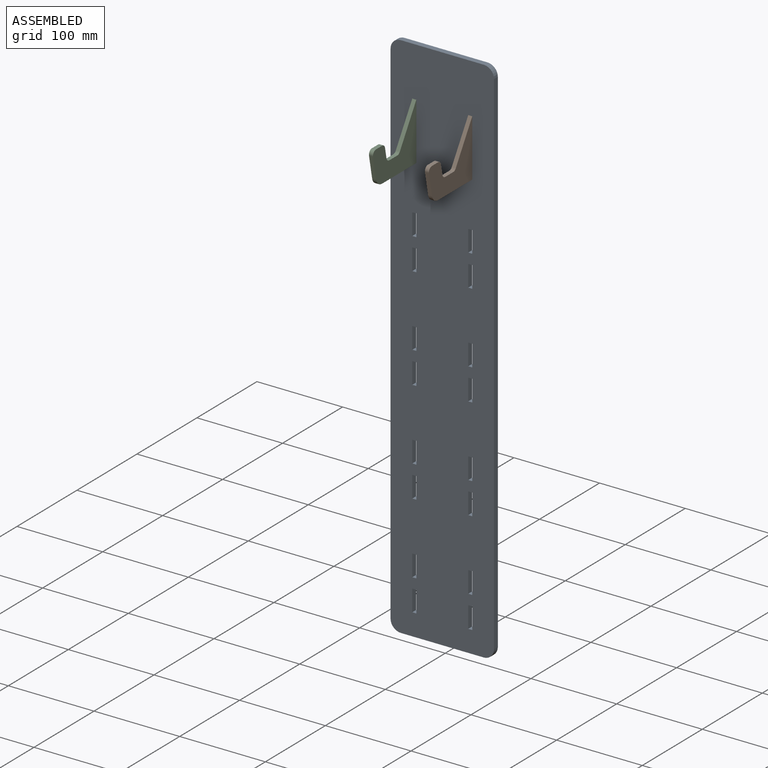
[diagram: assembled view]
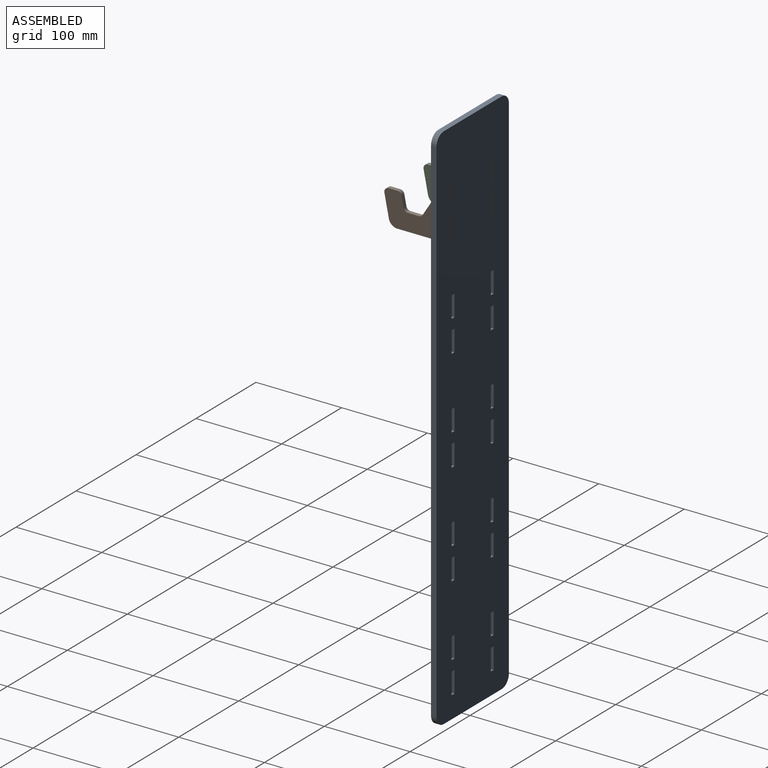
[diagram: assembled view, second angle]
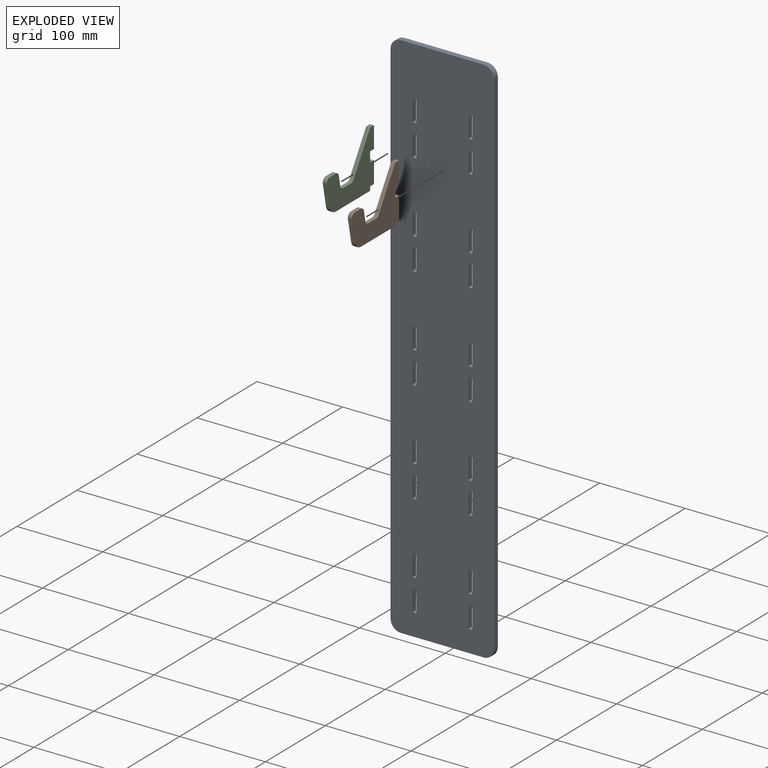
[diagram: exploded view]
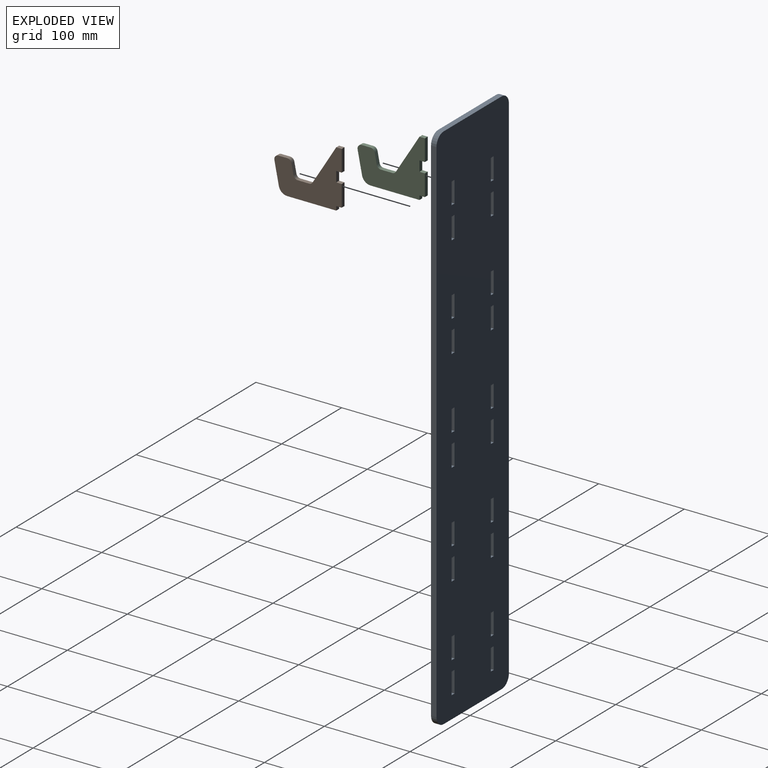
[diagram: exploded view, second angle]
ASSEMBLY  parts=3 mates=2
PART A: 90 faces, bbox 120.8x6.4x625.4 mm
  f0: plane 6.35x4.7mm, normal (0,0,-1), area 29.8mm2, adj f1,f87,f88,f89
  f1: plane 25x6.35mm, normal (-1,0,0), area 158.7mm2, adj f0,f2,f88,f89
  f2: plane 6.35x4.7mm, normal (0,0,1), area 29.8mm2, adj f1,f87,f88,f89
  f3: plane 6.35x4.7mm, normal (0,0,-1), area 29.8mm2, adj f4,f67,f88,f89
  f4: plane 25x6.35mm, normal (-1,0,0), area 158.8mm2, adj f3,f5,f88,f89
  f5: plane 6.35x4.7mm, normal (0,0,1), area 29.8mm2, adj f4,f67,f88,f89
  f6: plane 6.35x4.7mm, normal (0,0,-1), area 29.8mm2, adj f7,f68,f88,f89
  f7: plane 25x6.35mm, normal (-1,0,0), area 158.7mm2, adj f6,f8,f88,f89
  f8: plane 6.35x4.7mm, normal (0,0,1), area 29.8mm2, adj f7,f68,f88,f89
  f9: plane 6.35x4.7mm, normal (0,0,-1), area 29.8mm2, adj f10,f69,f88,f89
  f10: plane 25x6.35mm, normal (-1,0,0), area 158.8mm2, adj f9,f11,f88,f89
  f11: plane 6.35x4.7mm, normal (0,0,1), area 29.8mm2, adj f10,f69,f88,f89
  f12: plane 601.4x6.35mm, normal (1,0,0), area 3818.9mm2, adj f13,f70,f88,f89
  f13: cylinder r=12mm len=12mm, axis (0,1,0), area 119.7mm2, adj f12,f14,f88,f89
  f14: plane 96.8x6.35mm, normal (0,0,1), area 614.7mm2, adj f13,f15,f88,f89
  f15: cylinder r=12mm len=12mm, axis (0,1,0), area 119.7mm2, adj f14,f16,f88,f89
  f16: plane 601.4x6.35mm, normal (-1,0,0), area 3818.9mm2, adj f15,f17,f88,f89
  f17: cylinder r=12mm len=12mm, axis (0,1,0), area 119.7mm2, adj f16,f18,f88,f89
  f18: plane 96.8x6.35mm, normal (0,0,-1), area 614.7mm2, adj f17,f70,f88,f89
  f19: plane 6.35x4.7mm, normal (0,0,1), area 29.8mm2, adj f20,f71,f88,f89
  f20: plane 25x6.35mm, normal (1,0,0), area 158.8mm2, adj f19,f21,f88,f89
  f21: plane 6.35x4.7mm, normal (0,0,-1), area 29.8mm2, adj f20,f71,f88,f89
  f22: plane 6.35x4.7mm, normal (0,0,1), area 29.8mm2, adj f23,f72,f88,f89
  f23: plane 25x6.35mm, normal (1,0,0), area 158.8mm2, adj f22,f24,f88,f89
  f24: plane 6.35x4.7mm, normal (0,0,-1), area 29.8mm2, adj f23,f72,f88,f89
  f25: plane 25x6.35mm, normal (1,0,0), area 158.8mm2, adj f26,f73,f88,f89
  f26: plane 6.35x4.7mm, normal (0,0,-1), area 29.8mm2, adj f25,f27,f88,f89
  f27: plane 25x6.35mm, normal (-1,0,0), area 158.8mm2, adj f26,f73,f88,f89
  f28: plane 6.35x4.7mm, normal (0,0,1), area 29.8mm2, adj f29,f74,f88,f89
  f29: plane 25x6.35mm, normal (1,0,0), area 158.7mm2, adj f28,f30,f88,f89
  f30: plane 6.35x4.7mm, normal (0,0,-1), area 29.8mm2, adj f29,f74,f88,f89
  f31: plane 6.35x4.7mm, normal (0,0,1), area 29.8mm2, adj f32,f75,f88,f89
  f32: plane 25x6.35mm, normal (1,0,0), area 158.7mm2, adj f31,f33,f88,f89
  f33: plane 6.35x4.7mm, normal (0,0,-1), area 29.8mm2, adj f32,f75,f88,f89
  f34: plane 25x6.35mm, normal (1,0,0), area 158.7mm2, adj f35,f76,f88,f89
  f35: plane 6.35x4.7mm, normal (0,0,-1), area 29.8mm2, adj f34,f36,f88,f89
  f36: plane 25x6.35mm, normal (-1,0,0), area 158.7mm2, adj f35,f76,f88,f89
  f37: plane 6.35x4.7mm, normal (0,0,1), area 29.8mm2, adj f38,f77,f88,f89
  f38: plane 25x6.35mm, normal (1,0,0), area 158.8mm2, adj f37,f39,f88,f89
  f39: plane 6.35x4.7mm, normal (0,0,-1), area 29.8mm2, adj f38,f77,f88,f89
  f40: plane 6.35x4.7mm, normal (0,0,1), area 29.8mm2, adj f41,f78,f88,f89
  f41: plane 25x6.35mm, normal (1,0,0), area 158.8mm2, adj f40,f42,f88,f89
  f42: plane 6.35x4.7mm, normal (0,0,-1), area 29.8mm2, adj f41,f78,f88,f89
  f43: plane 25x6.35mm, normal (1,0,0), area 158.8mm2, adj f44,f79,f88,f89
  f44: plane 6.35x4.7mm, normal (0,0,-1), area 29.8mm2, adj f43,f45,f88,f89
  f45: plane 25x6.35mm, normal (-1,0,0), area 158.8mm2, adj f44,f79,f88,f89
  f46: plane 6.35x4.7mm, normal (0,0,1), area 29.8mm2, adj f47,f80,f88,f89
  f47: plane 25x6.35mm, normal (1,0,0), area 158.7mm2, adj f46,f48,f88,f89
  f48: plane 6.35x4.7mm, normal (0,0,-1), area 29.8mm2, adj f47,f80,f88,f89
  f49: plane 6.35x4.7mm, normal (0,0,1), area 29.8mm2, adj f50,f81,f88,f89
  f50: plane 25x6.35mm, normal (1,0,0), area 158.7mm2, adj f49,f51,f88,f89
  f51: plane 6.35x4.7mm, normal (0,0,-1), area 29.8mm2, adj f50,f81,f88,f89
  f52: plane 25x6.35mm, normal (1,0,0), area 158.7mm2, adj f53,f82,f88,f89
  f53: plane 6.35x4.7mm, normal (0,0,-1), area 29.8mm2, adj f52,f54,f88,f89
  f54: plane 25x6.35mm, normal (-1,0,0), area 158.7mm2, adj f53,f82,f88,f89
  f55: plane 25x6.35mm, normal (1,0,0), area 158.7mm2, adj f56,f83,f88,f89
  f56: plane 6.35x4.7mm, normal (0,0,-1), area 29.8mm2, adj f55,f57,f88,f89
  f57: plane 25x6.35mm, normal (-1,0,0), area 158.7mm2, adj f56,f83,f88,f89
  f58: plane 25x6.35mm, normal (1,0,0), area 158.7mm2, adj f59,f84,f88,f89
  f59: plane 6.35x4.7mm, normal (0,0,-1), area 29.8mm2, adj f58,f60,f88,f89
  f60: plane 25x6.35mm, normal (-1,0,0), area 158.7mm2, adj f59,f84,f88,f89
  f61: plane 25x6.35mm, normal (1,0,0), area 158.7mm2, adj f62,f85,f88,f89
  f62: plane 6.35x4.7mm, normal (0,0,-1), area 29.8mm2, adj f61,f63,f88,f89
  f63: plane 25x6.35mm, normal (-1,0,0), area 158.7mm2, adj f62,f85,f88,f89
  f64: plane 25x6.35mm, normal (1,0,0), area 158.7mm2, adj f65,f86,f88,f89
  f65: plane 6.35x4.7mm, normal (0,0,-1), area 29.8mm2, adj f64,f66,f88,f89
  f66: plane 25x6.35mm, normal (-1,0,0), area 158.7mm2, adj f65,f86,f88,f89
  f67: plane 25x6.35mm, normal (1,0,0), area 158.8mm2, adj f3,f5,f88,f89
  f68: plane 25x6.35mm, normal (1,0,0), area 158.7mm2, adj f6,f8,f88,f89
  f69: plane 25x6.35mm, normal (1,0,0), area 158.8mm2, adj f9,f11,f88,f89
  f70: cylinder r=12mm len=12mm, axis (0,1,0), area 119.7mm2, adj f12,f18,f88,f89
  f71: plane 25x6.35mm, normal (-1,0,0), area 158.8mm2, adj f19,f21,f88,f89
  f72: plane 25x6.35mm, normal (-1,0,0), area 158.8mm2, adj f22,f24,f88,f89
  f73: plane 6.35x4.7mm, normal (0,0,1), area 29.8mm2, adj f25,f27,f88,f89
  f74: plane 25x6.35mm, normal (-1,0,0), area 158.7mm2, adj f28,f30,f88,f89
  f75: plane 25x6.35mm, normal (-1,0,0), area 158.7mm2, adj f31,f33,f88,f89
  f76: plane 6.35x4.7mm, normal (0,0,1), area 29.8mm2, adj f34,f36,f88,f89
  f77: plane 25x6.35mm, normal (-1,0,0), area 158.8mm2, adj f37,f39,f88,f89
  f78: plane 25x6.35mm, normal (-1,0,0), area 158.8mm2, adj f40,f42,f88,f89
  f79: plane 6.35x4.7mm, normal (0,0,1), area 29.8mm2, adj f43,f45,f88,f89
  f80: plane 25x6.35mm, normal (-1,0,0), area 158.7mm2, adj f46,f48,f88,f89
  f81: plane 25x6.35mm, normal (-1,0,0), area 158.7mm2, adj f49,f51,f88,f89
  f82: plane 6.35x4.7mm, normal (0,0,1), area 29.8mm2, adj f52,f54,f88,f89
  f83: plane 6.35x4.7mm, normal (0,0,1), area 29.8mm2, adj f55,f57,f88,f89
  f84: plane 6.35x4.7mm, normal (0,0,1), area 29.8mm2, adj f58,f60,f88,f89
  f85: plane 6.35x4.7mm, normal (0,0,1), area 29.8mm2, adj f61,f63,f88,f89
  f86: plane 6.35x4.7mm, normal (0,0,1), area 29.8mm2, adj f64,f66,f88,f89
  f87: plane 25x6.35mm, normal (1,0,0), area 158.7mm2, adj f0,f2,f88,f89
  f88: plane 625.4x120.8mm, normal (0,-1,0), area 73074.7mm2, adj f0,f1,f2,f3,f4,f5,f6,f7
  f89: plane 625.4x120.8mm, normal (0,1,0), area 73074.7mm2, adj f0,f1,f2,f3,f4,f5,f6,f7
PART B: 21 faces, bbox 4.7x78.6x66.7 mm
  f0: cylinder r=5mm len=4.7mm, axis (-1,0,0), area 23.9mm2, adj f1,f18,f19,f20
  f1: plane 13.12x4.7mm, normal (0,0,1), area 61.7mm2, adj f0,f2,f19,f20
  f2: cylinder r=5mm len=4.9mm, axis (-1,0,0), area 32.3mm2, adj f1,f3,f19,f20
  f3: plane 11.96x4.7mm, normal (0,0.98,0.2), area 57.3mm2, adj f2,f4,f19,f20
  f4: cylinder r=5mm len=4.9mm, axis (-1,0,0), area 32.3mm2, adj f3,f5,f19,f20
  f5: plane 10.2x4.7mm, normal (0,0,1), area 47.9mm2, adj f4,f6,f19,f20
  f6: cylinder r=5mm len=5.98mm, axis (-1,0,0), area 41.6mm2, adj f5,f7,f19,f20
  f7: plane 25.98x5.2mm, normal (0,-0.98,-0.2), area 124.5mm2, adj f6,f8,f19,f20
  f8: cylinder r=10mm len=9.81mm, axis (-1,0,0), area 64.5mm2, adj f7,f9,f19,f20
  f9: plane 57.19x4.7mm, normal (0,0,-1), area 268.8mm2, adj f8,f10,f19,f20
  f10: plane 4.74x4.7mm, normal (0,1,0), area 22.3mm2, adj f9,f11,f19,f20
  f11: plane 6.35x4.7mm, normal (0,0,-1), area 29.8mm2, adj f10,f12,f19,f20
  f12: plane 25x4.7mm, normal (0,1,0), area 117.5mm2, adj f11,f13,f19,f20
  f13: plane 6.35x4.7mm, normal (0,0,1), area 29.8mm2, adj f12,f14,f19,f20
  f14: plane 12x4.7mm, normal (0,1,0), area 56.4mm2, adj f13,f15,f19,f20
  f15: plane 6.35x4.7mm, normal (0,0,-1), area 29.8mm2, adj f14,f16,f19,f20
  f16: plane 25x4.7mm, normal (0,1,0), area 117.5mm2, adj f15,f17,f19,f20
  f17: plane 6.35x4.7mm, normal (0,0,1), area 29.8mm2, adj f16,f18,f19,f20
  f18: plane 44.37x27.53mm, normal (0,-0.85,0.53), area 245.4mm2, adj f0,f17,f19,f20
  f19: plane 78.64x66.74mm, normal (1,0,0), area 2730.4mm2, adj f0,f1,f2,f3,f4,f5,f6,f7
  f20: plane 78.64x66.74mm, normal (-1,0,0), area 2730.4mm2, adj f0,f1,f2,f3,f4,f5,f6,f7
PART C: same geometry as B
PLACE A t=(-0.83,2.55,-0.22)mm fixed
PLACE B t=(29.47,-3.8,254.48)mm
PLACE C t=(-35.83,-3.8,254.48)mm
MATE fastened B.f12 <-> A.f89  axis (0,1,0) through (31.82,2.55,204.98)mm
MATE fastened C.f12 <-> A.f89  axis (0,1,0) through (-33.48,2.55,204.98)mm
